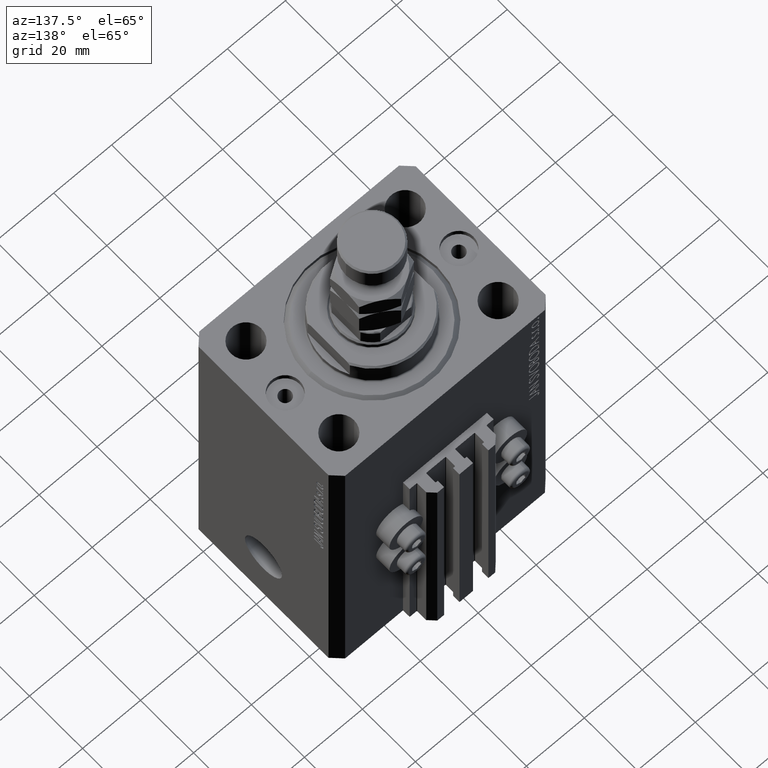
[diagram: clean part render]
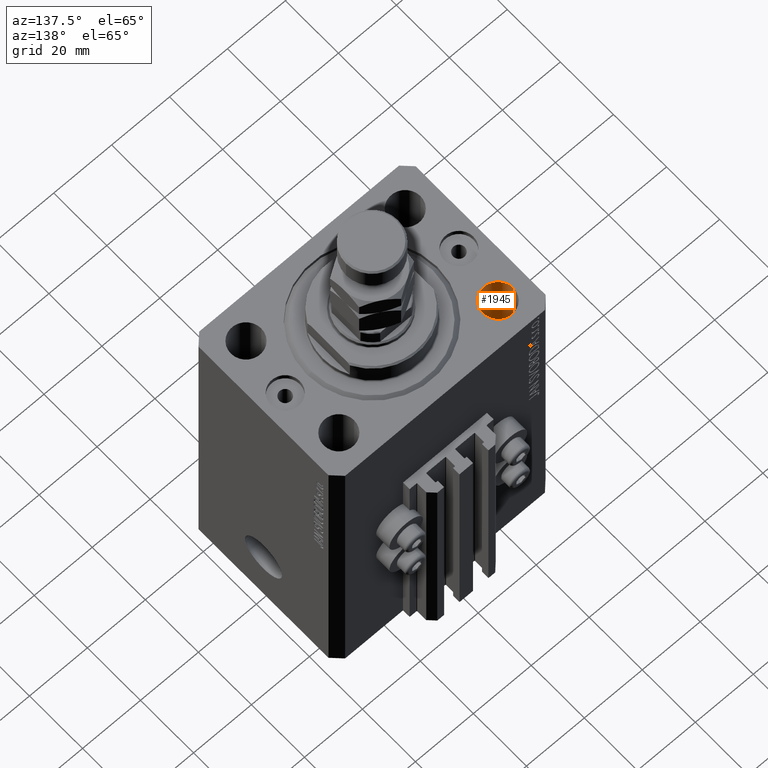
[diagram: same view with one face highlighted and labeled with its STEP entity id]
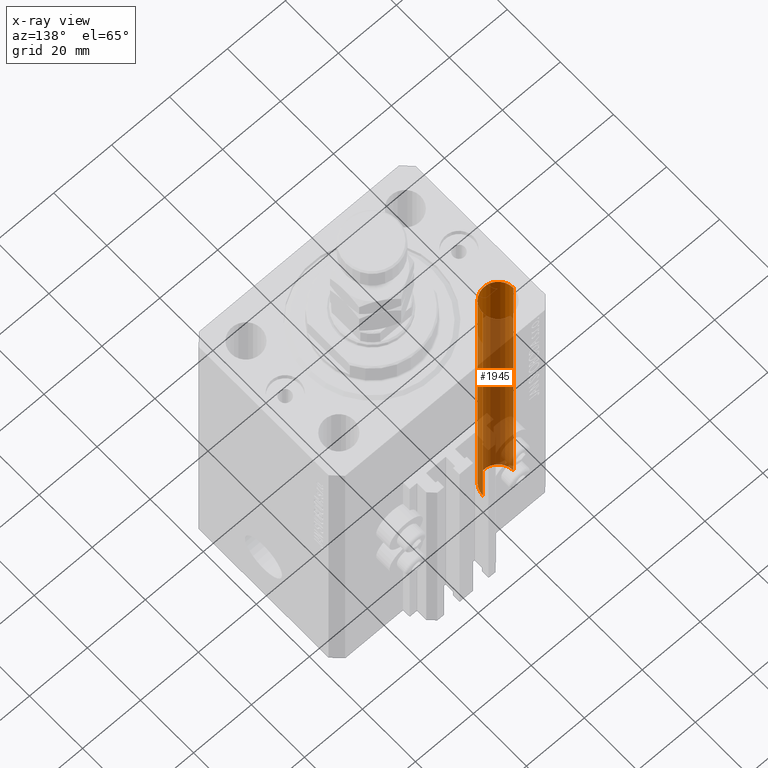
[diagram: x-ray of the same camera — body ghosted, the highlighted face saturated]
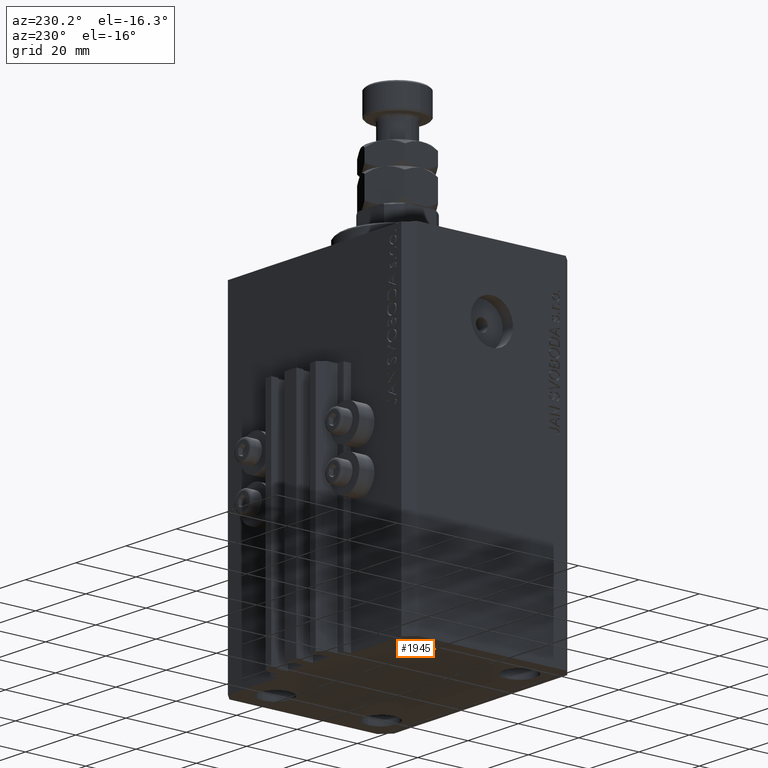
[diagram: same view with one face highlighted and labeled with its STEP entity id]
A machine part, auxiliary view. The second image highlights one B-rep face of the part: STEP entity #1945.
The next image is the same camera in x-ray: the body ghosted, the highlighted face saturated — about 81% of this face is hidden behind the body in this view.
A second angle (auxiliary view) of the same face is appended — the face is thin or edge-on in the first view.
In plain terms, the highlighted cylindrical surface (edge-blend (fillet) strip) has radius 5.25 mm, axis along (0, 0, 1).
Its self-contained STEP definition (entity closure, byte-faithful):
#1819 = DIRECTION ( 'NONE',  ( 1.000000000000000000, 0.000000000000000000, 0.000000000000000000 ) ) ;
#1945 = ADVANCED_FACE ( 'NONE', ( #30977 ), #38389, .F. ) ;
#3230 = CARTESIAN_POINT ( 'NONE',  ( -22.25000000000000000, 17.49999999999999645, -124.8492424049175042 ) ) ;
#4518 = DIRECTION ( 'NONE',  ( 1.000000000000000000, 0.000000000000000000, 0.000000000000000000 ) ) ;
#8521 = ORIENTED_EDGE ( 'NONE', *, *, #19775, .T. ) ;
#11086 = EDGE_LOOP ( 'NONE', ( #44425, #15650, #8521, #48769 ) ) ;
#12222 = CARTESIAN_POINT ( 'NONE',  ( -22.25000000000000000, 17.49999999999999645, 0.000000000000000000 ) ) ;
#12416 = LINE ( 'NONE', #39841, #48606 ) ;
#14260 = AXIS2_PLACEMENT_3D ( 'NONE', #31238, #20849, #1819 ) ;
#15650 = ORIENTED_EDGE ( 'NONE', *, *, #15671, .T. ) ;
#15671 = EDGE_CURVE ( 'NONE', #42094, #35228, #12416, .T. ) ;
#15674 = DIRECTION ( 'NONE',  ( -0.000000000000000000, -0.000000000000000000, 1.000000000000000000 ) ) ;
#15903 = EDGE_CURVE ( 'NONE', #17505, #42094, #40748, .T. ) ;
#16383 = CARTESIAN_POINT ( 'NONE',  ( -32.75000000000000000, 17.49999999999999645, 0.000000000000000000 ) ) ;
#17505 = VERTEX_POINT ( 'NONE', #45756 ) ;
#19775 = EDGE_CURVE ( 'NONE', #35228, #40747, #35567, .T. ) ;
#20849 = DIRECTION ( 'NONE',  ( 0.000000000000000000, 0.000000000000000000, 1.000000000000000000 ) ) ;
#23242 = LINE ( 'NONE', #3230, #24466 ) ;
#24466 = VECTOR ( 'NONE', #48464, 1000.000000000000000 ) ;
#26223 = CARTESIAN_POINT ( 'NONE',  ( -27.50000000000000000, 17.49999999999999645, -110.0000000000000000 ) ) ;
#26737 = EDGE_CURVE ( 'NONE', #17505, #40747, #23242, .T. ) ;
#28239 = DIRECTION ( 'NONE',  ( -0.000000000000000000, -0.000000000000000000, 1.000000000000000000 ) ) ;
#29934 = DIRECTION ( 'NONE',  ( 1.000000000000000000, 0.000000000000000000, 0.000000000000000000 ) ) ;
#30977 = FACE_OUTER_BOUND ( 'NONE', #11086, .T. ) ;
#31238 = CARTESIAN_POINT ( 'NONE',  ( -27.50000000000000000, 17.49999999999999645, 0.000000000000000000 ) ) ;
#34618 = DIRECTION ( 'NONE',  ( -0.000000000000000000, -0.000000000000000000, -1.000000000000000000 ) ) ;
#35228 = VERTEX_POINT ( 'NONE', #16383 ) ;
#35567 = CIRCLE ( 'NONE', #14260, 5.250000000000000888 ) ;
#38389 = CYLINDRICAL_SURFACE ( 'NONE', #38840, 5.250000000000000888 ) ;
#38840 = AXIS2_PLACEMENT_3D ( 'NONE', #41865, #15674, #4518 ) ;
#39157 = AXIS2_PLACEMENT_3D ( 'NONE', #26223, #34618, #29934 ) ;
#39841 = CARTESIAN_POINT ( 'NONE',  ( -32.75000000000000000, 17.49999999999999645, -124.8492424049175042 ) ) ;
#40230 = CARTESIAN_POINT ( 'NONE',  ( -32.75000000000000000, 17.49999999999999645, -110.0000000000000000 ) ) ;
#40747 = VERTEX_POINT ( 'NONE', #12222 ) ;
#40748 = CIRCLE ( 'NONE', #39157, 5.250000000000000888 ) ;
#41865 = CARTESIAN_POINT ( 'NONE',  ( -27.50000000000000000, 17.49999999999999645, -124.8492424049175042 ) ) ;
#42094 = VERTEX_POINT ( 'NONE', #40230 ) ;
#44425 = ORIENTED_EDGE ( 'NONE', *, *, #15903, .T. ) ;
#45756 = CARTESIAN_POINT ( 'NONE',  ( -22.25000000000000000, 17.49999999999999645, -110.0000000000000000 ) ) ;
#48464 = DIRECTION ( 'NONE',  ( -0.000000000000000000, -0.000000000000000000, 1.000000000000000000 ) ) ;
#48606 = VECTOR ( 'NONE', #28239, 1000.000000000000000 ) ;
#48769 = ORIENTED_EDGE ( 'NONE', *, *, #26737, .F. ) ;